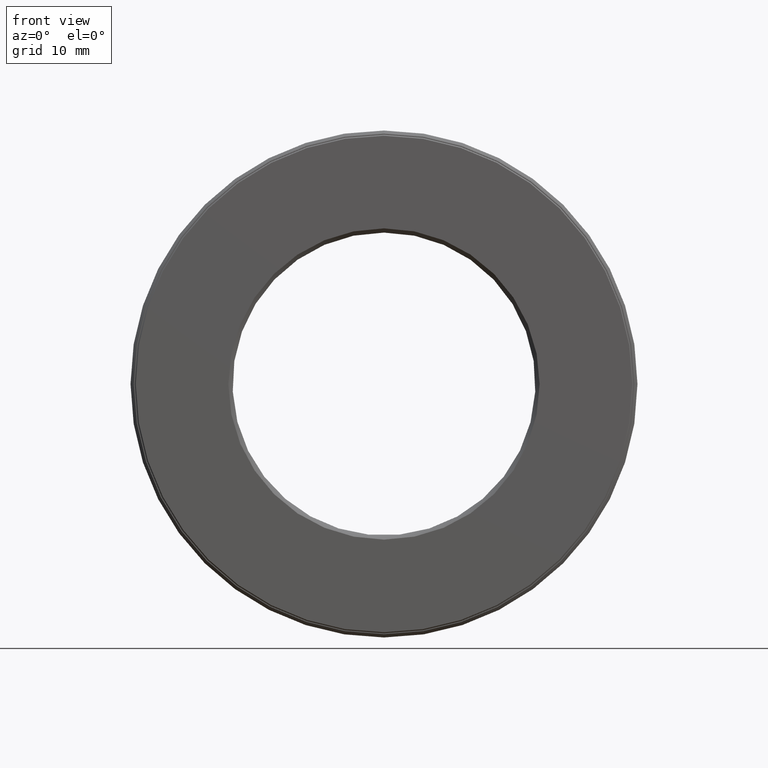
[diagram: clean part render]
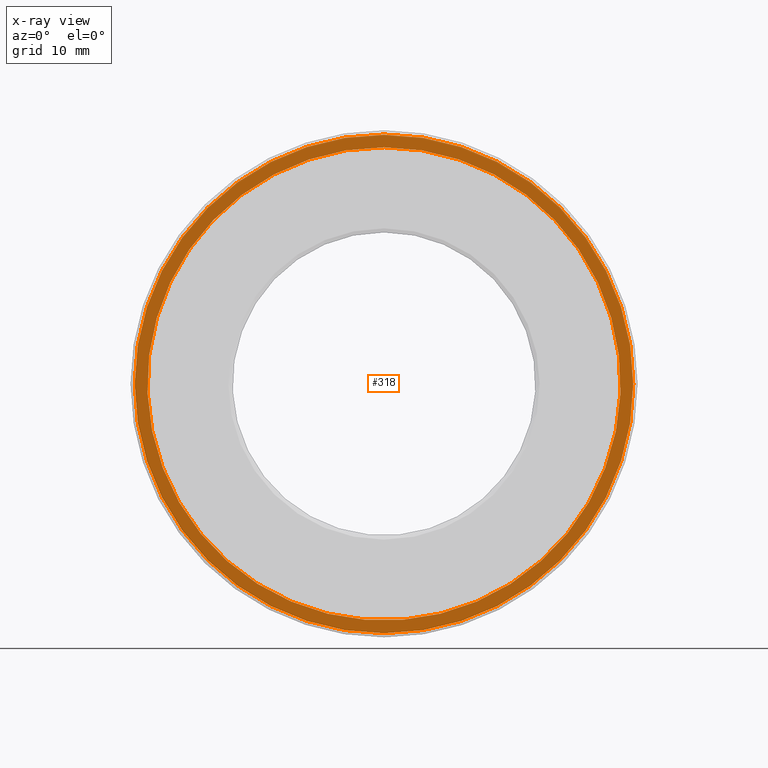
[diagram: x-ray — body ghosted, one internal face saturated and labeled with its STEP entity id]
A machine part, front view, then the same camera in x-ray: the body is ghosted and one INTERNAL B-rep face — a face not visible from any outside direction — is saturated and labeled: STEP entity #318.
In plain terms, the highlighted planar face has unit normal (-0, 1, 0).
Its self-contained STEP definition (entity closure, byte-faithful):
#5 = CARTESIAN_POINT ( 'NONE',  ( 0.0000000000000000000, 0.6524999999999997500, 1.123125000000000200 ) ) ;
#11 = CARTESIAN_POINT ( 'NONE',  ( 0.0000000000000000000, 0.6524999999999997500, 0.0000000000000000000 ) ) ;
#37 = EDGE_CURVE ( 'NONE', #216, #216, #168, .T. ) ;
#38 = PLANE ( 'NONE',  #574 ) ;
#40 = CARTESIAN_POINT ( 'NONE',  ( 0.0000000000000000000, 0.6524999999999997500, 0.0000000000000000000 ) ) ;
#66 = FACE_OUTER_BOUND ( 'NONE', #346, .T. ) ;
#110 = EDGE_LOOP ( 'NONE', ( #187 ) ) ;
#135 = DIRECTION ( 'NONE',  ( 0.0000000000000000000, 0.0000000000000000000, 1.000000000000000000 ) ) ;
#168 = CIRCLE ( 'NONE', #233, 1.123125000000000200 ) ;
#184 = DIRECTION ( 'NONE',  ( -0.0000000000000000000, 1.000000000000000000, 0.0000000000000000000 ) ) ;
#186 = CIRCLE ( 'NONE', #191, 1.183125000000000000 ) ;
#187 = ORIENTED_EDGE ( 'NONE', *, *, #37, .T. ) ;
#191 = AXIS2_PLACEMENT_3D ( 'NONE', #500, #227, #135 ) ;
#216 = VERTEX_POINT ( 'NONE', #5 ) ;
#227 = DIRECTION ( 'NONE',  ( -0.0000000000000000000, 1.000000000000000000, -0.0000000000000000000 ) ) ;
#233 = AXIS2_PLACEMENT_3D ( 'NONE', #11, #477, #469 ) ;
#318 = ADVANCED_FACE ( 'NONE', ( #66, #387 ), #38, .F. ) ;
#343 = EDGE_CURVE ( 'NONE', #351, #351, #186, .T. ) ;
#346 = EDGE_LOOP ( 'NONE', ( #601 ) ) ;
#351 = VERTEX_POINT ( 'NONE', #514 ) ;
#387 = FACE_BOUND ( 'NONE', #110, .T. ) ;
#456 = DIRECTION ( 'NONE',  ( 0.0000000000000000000, 0.0000000000000000000, 1.000000000000000000 ) ) ;
#469 = DIRECTION ( 'NONE',  ( 0.0000000000000000000, 0.0000000000000000000, 1.000000000000000000 ) ) ;
#477 = DIRECTION ( 'NONE',  ( -0.0000000000000000000, 1.000000000000000000, -0.0000000000000000000 ) ) ;
#500 = CARTESIAN_POINT ( 'NONE',  ( 0.0000000000000000000, 0.6524999999999997500, 0.0000000000000000000 ) ) ;
#514 = CARTESIAN_POINT ( 'NONE',  ( 0.0000000000000000000, 0.6524999999999997500, 1.183125000000000000 ) ) ;
#574 = AXIS2_PLACEMENT_3D ( 'NONE', #40, #184, #456 ) ;
#601 = ORIENTED_EDGE ( 'NONE', *, *, #343, .F. ) ;